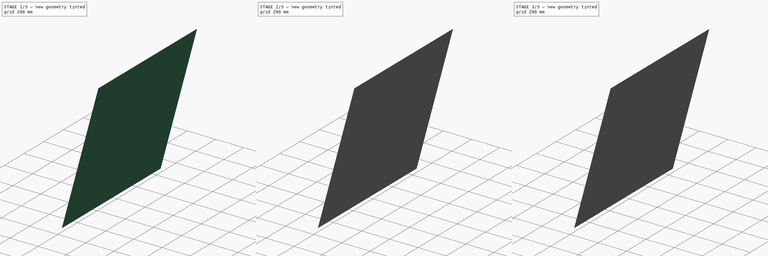
[diagram: build sequence overview — one tinted view per stage of 3, left to right]
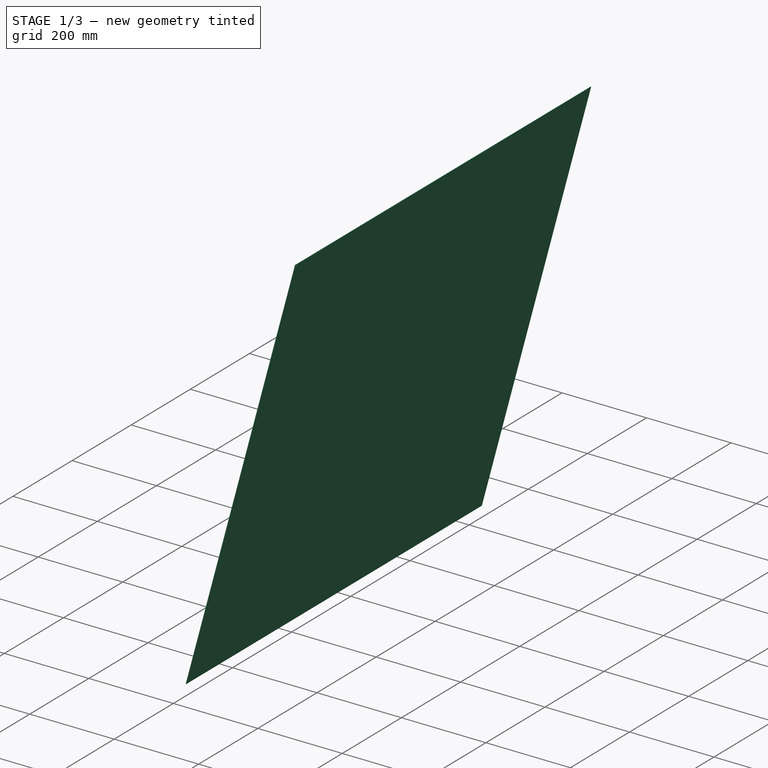
[diagram: stage 1 of 3 — iso view after this stage's code; geometry added in this stage tinted green]
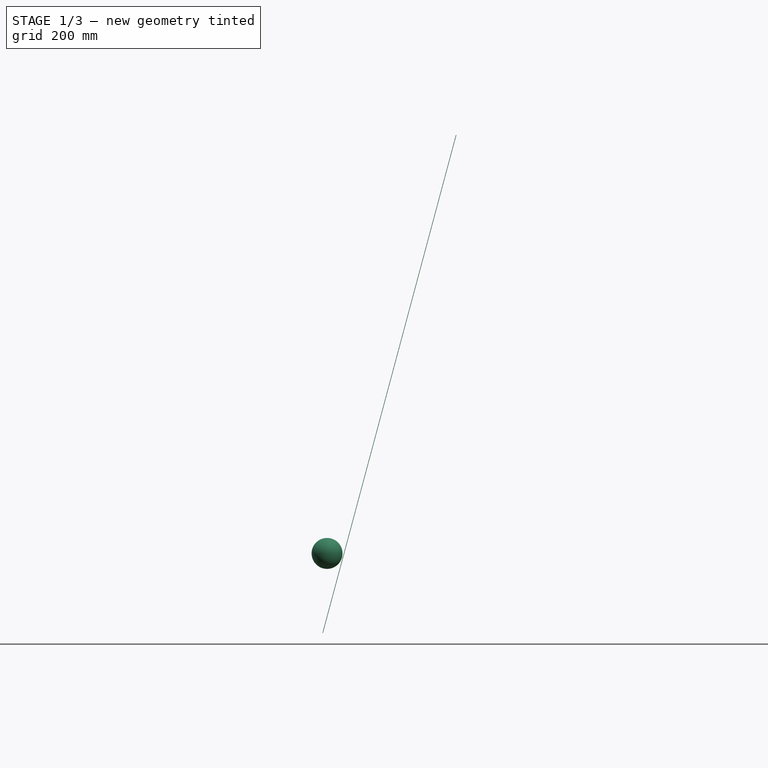
[diagram: stage 1 of 3 — front view after this stage's code; geometry added in this stage tinted green]
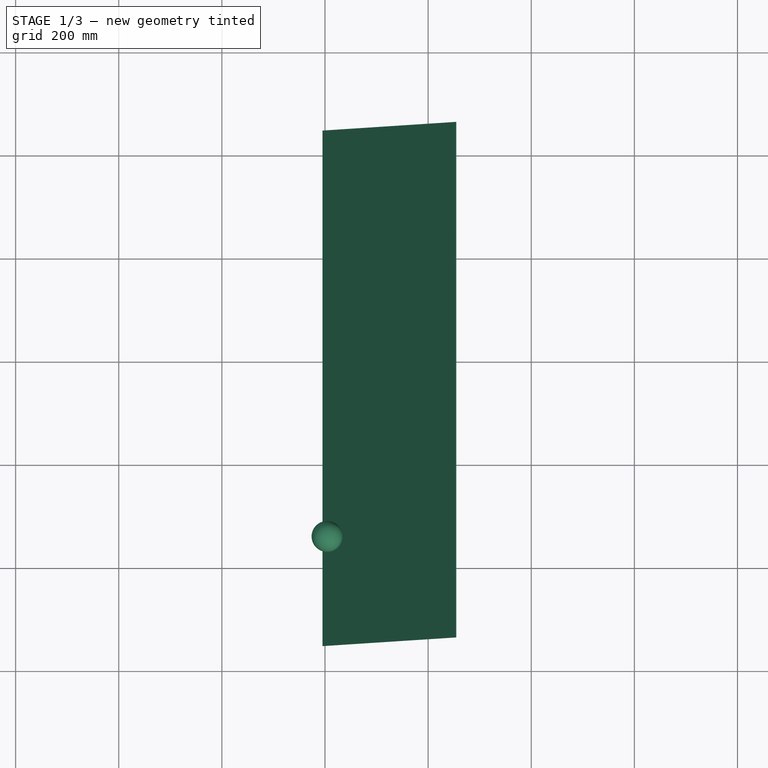
[diagram: stage 1 of 3 — top view after this stage's code; geometry added in this stage tinted green]
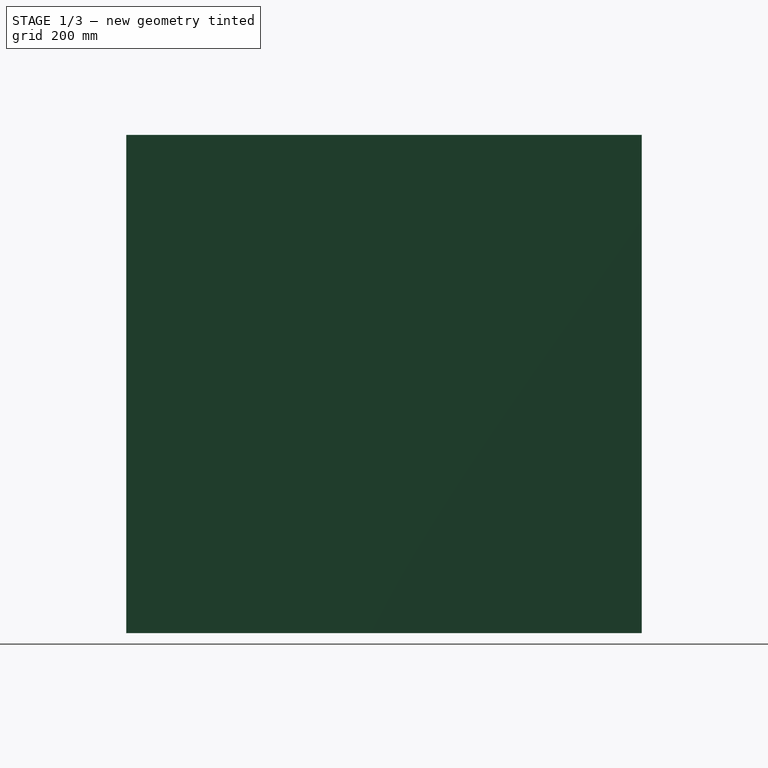
[diagram: stage 1 of 3 — right view after this stage's code; geometry added in this stage tinted green]
FCSTD DOCUMENT  (FreeCAD 0.17R13509 (Git))
Label: lightbulb-2
License: All rights reserved
LicenseURL: http://en.wikipedia.org/wiki/All_rights_reserved
objects: Raytracing::RayFeature×4, Sketcher::SketchObject×3, PartDesign::Revolution×2, PartDesign::Body×2, Image::ImagePlane×1, Part::Helix×1, PartDesign::ShapeBinder×1, PartDesign::SubtractivePipe×1, Part::Box×1, Part::Sphere×1, Raytracing::RayProject×1
note: 15 computed .brp shape members not serialized (recipe doc carries the construction recipe); baked Part::Feature solids carry a one-line shape summary decoded from their .brp

FEATURE [PartDesign::Body] Body001
  Group = -> [Sketch001,Revolution001,Sketch002,SubtractivePipe,CopyHelix]
  Origin = -> Origin001
  Tip = -> SubtractivePipe
FEATURE [Part::Box] Box  label="Cube"
  AttacherType = Attacher::AttachEngine3D
  Height = 1
  Length = 1000
  Placement = pos=(-4,-151,-86.5) rot=(0,-1,0;1.309rad)
  Width = 1000
FEATURE [Raytracing::RayFeature] Body001_View
  Result = <blob: 1794776 chars omitted>
  Source = -> Body001
  Transparency = 0
FEATURE [Raytracing::RayFeature] Body_View
  Result = <blob: 198930 chars omitted>
  Source = -> Body
  Transparency = 30
FEATURE [Raytracing::RayFeature] Box_View
  Result = <blob: 3104 chars omitted>
  Source = -> Box
  Transparency = 0
FEATURE [Part::Sphere] Sphere
  Angle1 = -90
  Angle2 = 90
  Angle3 = 360
  AttacherType = Attacher::AttachEngine3D
  Placement = pos=(4,59,68) rot=(0,0,1;0rad)
  Radius = 30
FEATURE [Raytracing::RayFeature] Sphere_View
  Result = <blob: 340432 chars omitted>
  Source = -> Sphere
  Transparency = 0
FEATURE [Raytracing::RayProject] PovProject
  Camera = // declares position and view direction\n\n// Generated by FreeCAD (http://www.freecadweb.org/)\n#declare cam_location =  <-135.299,-120.596,-191.158>;\n#declare cam_look_at  = <82.9135,231.576,132.214>;\n#declare cam_sky      = <-0.897131,0.413768,0.154767>;\n#declare cam_angle    = 45; \ncamera {\n  location  cam_location\n  look_at   cam_look_at\n  sky       cam_sky\n  angle     cam_angle \n  right x*800/600\n}
  Group = -> [Body001_View,Body_View,Box_View,Sphere_View]
  Template = <userpath>/FCD/FC17/data/Mod/Raytracing/Templates/RadiosityOutdoorHQ.pov
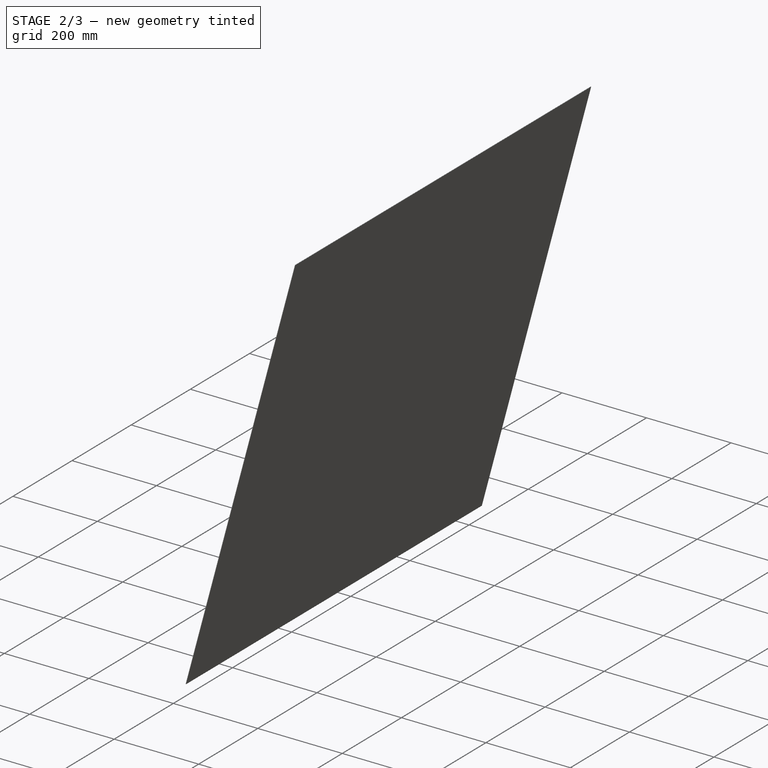
[diagram: stage 2 of 3 — iso view after this stage's code; geometry added in this stage tinted green]
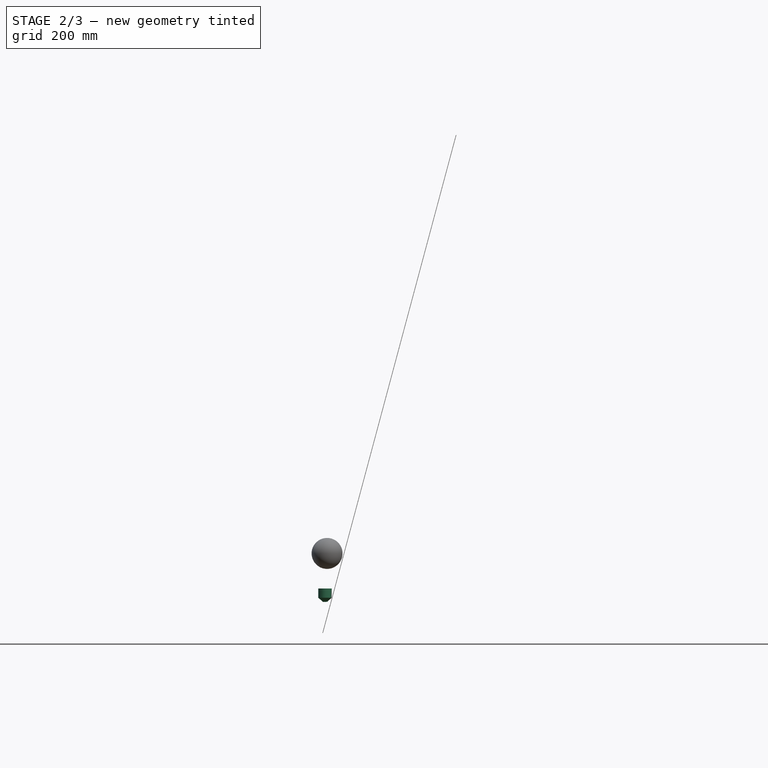
[diagram: stage 2 of 3 — front view after this stage's code; geometry added in this stage tinted green]
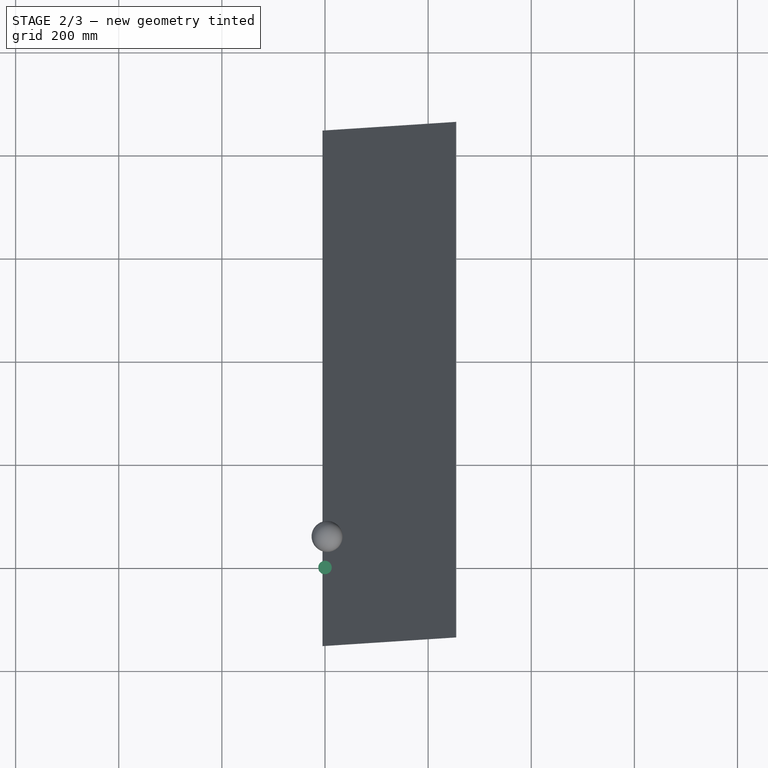
[diagram: stage 2 of 3 — top view after this stage's code; geometry added in this stage tinted green]
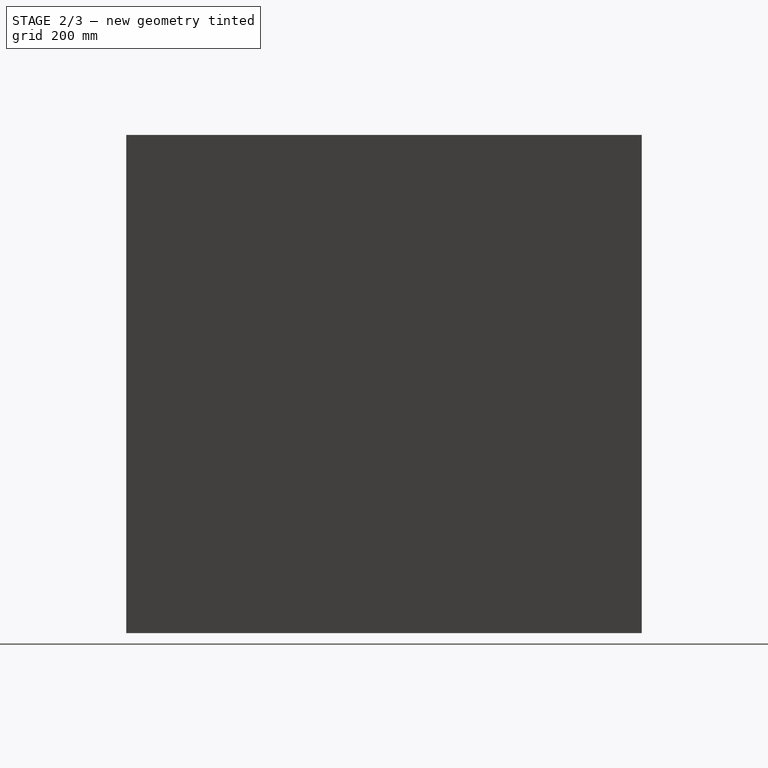
[diagram: stage 2 of 3 — right view after this stage's code; geometry added in this stage tinted green]
FEATURE [PartDesign::Body] Body
  Group = -> [Sketch,Revolution]
  Origin = -> Origin
  Tip = -> Revolution
FEATURE [Sketcher::SketchObject] Sketch001
  MapMode = 5
  Placement = pos=(0,0,0) rot=(1,0,0;1.5708rad)
  Support = -> [XZ_Plane001]
  sketch-geometry (6):
    g0: LineSegment StartX=0 StartY=0 StartZ=0 EndX=13 EndY=0 EndZ=0
    g1: LineSegment StartX=13 StartY=0 StartZ=0 EndX=13 EndY=-17.9297 EndZ=0
    g2: LineSegment StartX=13 StartY=-17.9297 StartZ=0 EndX=5.27881 EndY=-24.7865 EndZ=0
    g3: LineSegment StartX=5.27881 StartY=-24.7865 StartZ=0 EndX=5.01532 EndY=-25.7417 EndZ=0
    g4: LineSegment StartX=5.01532 StartY=-25.7417 StartZ=0 EndX=0 EndY=-26.1369 EndZ=0
    g5: LineSegment StartX=0 StartY=-26.1369 StartZ=0 EndX=0 EndY=0 EndZ=0
  constraints (11):
    c: Coincident(g-1,g0)
    c: Horizontal(g0)
    c: Coincident(g0,g1)
    c: Vertical(g1)
    c: Coincident(g1,g2)
    c: Coincident(g2,g3)
    c: Coincident(g3,g4)
    c: PointOnObject(g4,g-2)
    c: Coincident(g4,g5)
    c: Coincident(g5,g0)
    c: DistanceX(g0,g0) = 13
FEATURE [PartDesign::Revolution] Revolution001
  Angle = 360
  Axis = (0,0,1)
  Base = (0,0,0)
  Placement = pos=(0,0,0) rot=(1,0,0;1.5708rad)
  Profile = -> Sketch001
  ReferenceAxis = -> Sketch001 [V_Axis]
  Reversed = true
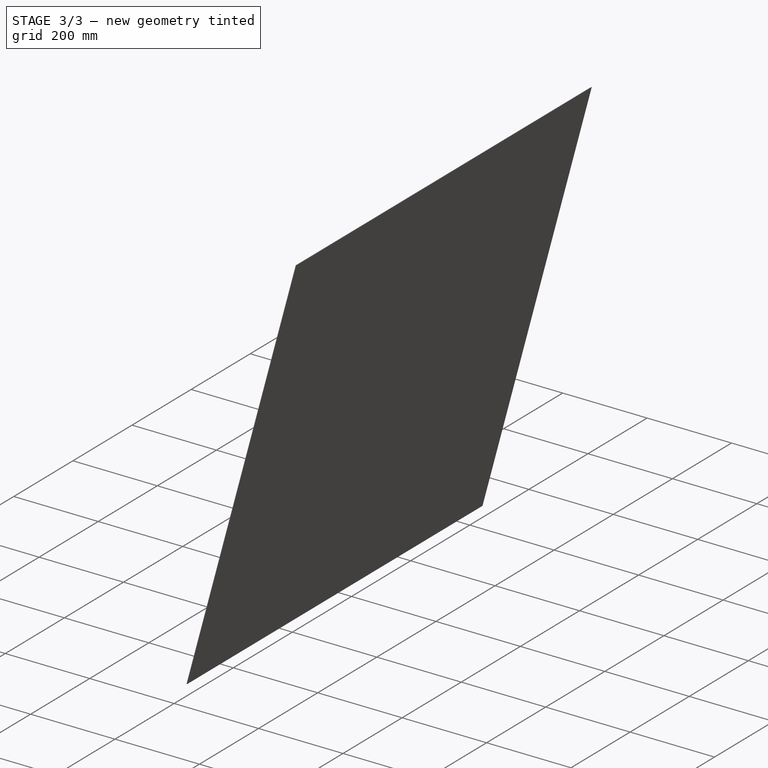
[diagram: stage 3 of 3 — iso view after this stage's code; geometry added in this stage tinted green]
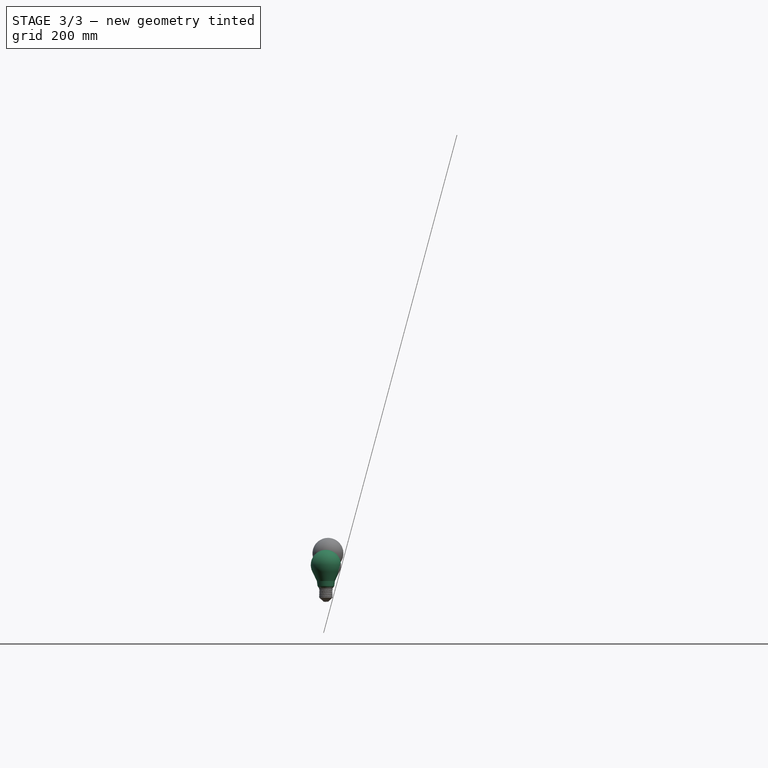
[diagram: stage 3 of 3 — front view after this stage's code; geometry added in this stage tinted green]
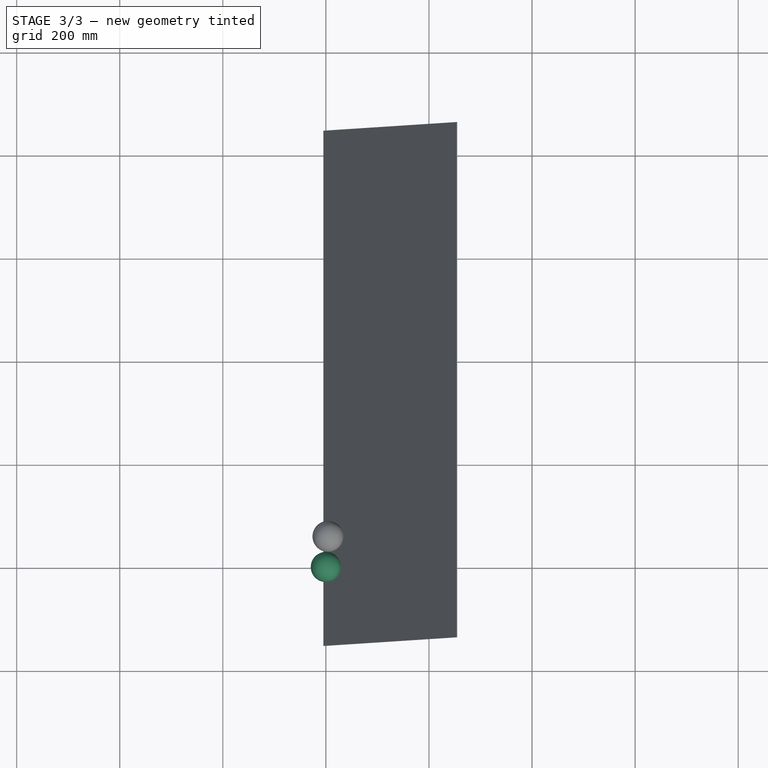
[diagram: stage 3 of 3 — top view after this stage's code; geometry added in this stage tinted green]
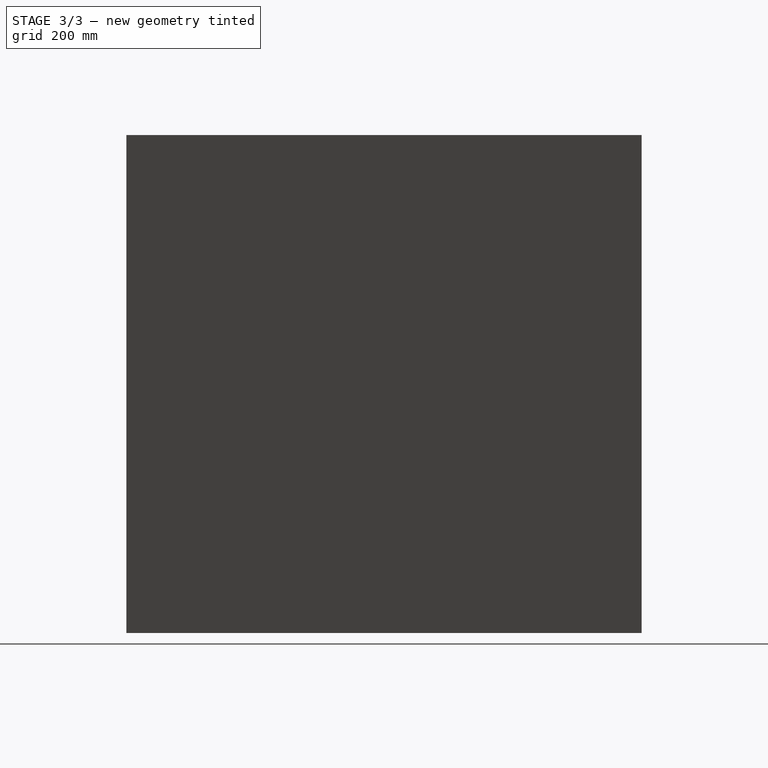
[diagram: stage 3 of 3 — right view after this stage's code; geometry added in this stage tinted green]
FEATURE [Image::ImagePlane] ImagePlane
  Placement = pos=(0,0,24) rot=(-1,0,0;4.71239rad)
  XSize = 77.793
  YSize = 104.031
FEATURE [Sketcher::SketchObject] Sketch
  MapMode = 5
  Placement = pos=(0,0,0) rot=(1,0,0;1.5708rad)
  Support = -> [XZ_Plane]
  sketch-geometry (6):
    g0: LineSegment StartX=0 StartY=0 StartZ=0 EndX=12.9854 EndY=0 EndZ=0
    g1: LineSegment StartX=12.9854 StartY=0 StartZ=0 EndX=16.323 EndY=4.71361 EndZ=0
    g2: LineSegment StartX=16.323 StartY=4.71361 StartZ=0 EndX=17.4636 EndY=14.371 EndZ=0
    g3: LineSegment StartX=17.4636 StartY=14.371 StartZ=0 EndX=26.3641 EndY=32.6929 EndZ=0
    g4: ArcOfCircle CenterX=0 CenterY=45.5 CenterZ=0 NormalX=0 NormalY=0 NormalZ=1 AngleXU=0 Radius=29.3102 StartAngle=5.83098 EndAngle=7.85398
    g5: LineSegment StartX=1.4e-11 StartY=74.8102 StartZ=0 EndX=1.4e-11 EndY=0 EndZ=0
  constraints (10):
    c: Coincident(g-1,g0)
    c: Horizontal(g0)
    c: Coincident(g0,g1)
    c: Coincident(g1,g2)
    c: Coincident(g2,g3)
    c: Tangent(g3,g4) = -1.5708
    c: Coincident(g5,g4)
    c: Vertical(g5)
    c: Coincident(g5,g-1)
    c: Perpendicular(g4,g5)
FEATURE [PartDesign::Revolution] Revolution
  Angle = 360
  Axis = (0,0,1)
  Base = (0,0,0)
  Placement = pos=(0,0,0) rot=(1,0,0;1.5708rad)
  Profile = -> Sketch
  ReferenceAxis = -> Sketch [V_Axis]
  Reversed = true
FEATURE [Part::Helix] Helix
  Angle = 0
  AttacherType = Attacher::AttachEngine3D
  Height = 18
  LocalCoord = 0
  Pitch = 3.5
  Placement = pos=(0,0,-20) rot=(0,0,1;0rad)
  Radius = 13
  Style = 1
FEATURE [Sketcher::SketchObject] Sketch002
  MapMode = 5
  Placement = pos=(0,0,0) rot=(1,0,0;1.5708rad)
  Support = -> [XZ_Plane001]
  sketch-geometry (1):
    g0: Circle CenterX=13.3817 CenterY=-15.7689 CenterZ=0 NormalX=0 NormalY=0 NormalZ=1 AngleXU=0 Radius=0.909064
FEATURE [PartDesign::ShapeBinder] CopyHelix
  Placement = pos=(0,0,-20) rot=(0,0,1;0rad)
FEATURE [PartDesign::SubtractivePipe] SubtractivePipe
  AuxilleryCurvelinear = true
  AuxillerySpineTangent = false
  BaseFeature = -> Revolution001
  Binormal = (0,0,0)
  Mode = 0
  Placement = pos=(0,0,0) rot=(1,0,0;1.5708rad)
  Profile = -> Sketch002
  Spine = -> CopyHelix [Edge1,Edge2,Edge3,Edge4,Edge5]
  SpineTangent = false
  Transformation = 0
  Transition = 0
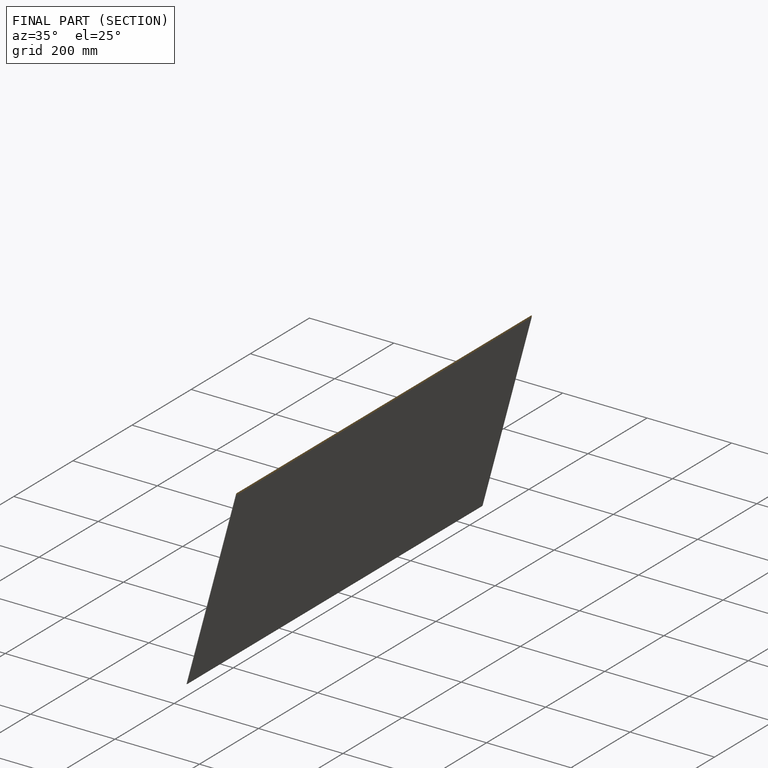
[diagram: finished part — half-section view (interior)]
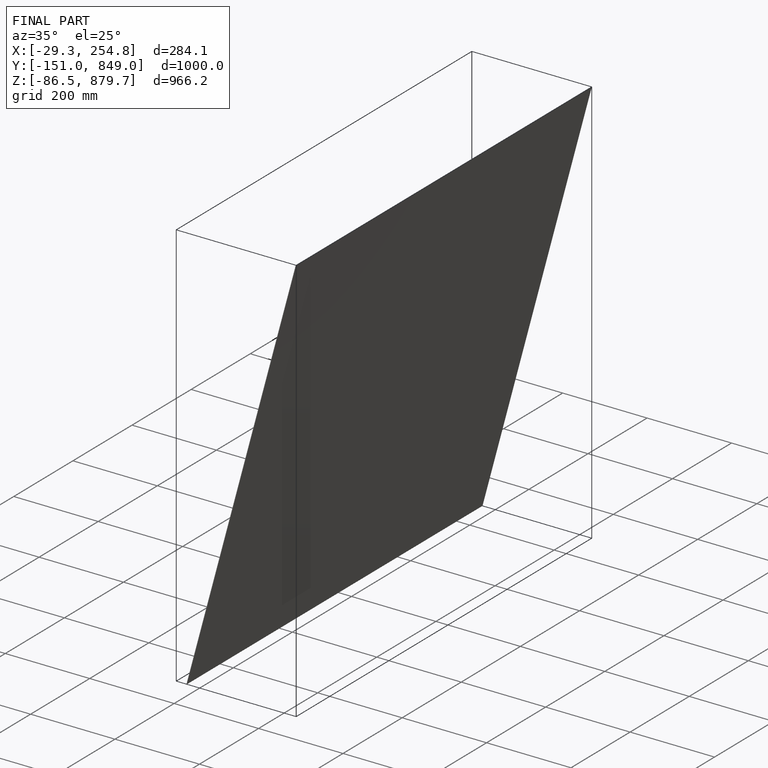
[diagram: finished part — iso view with bounding-box wireframe]
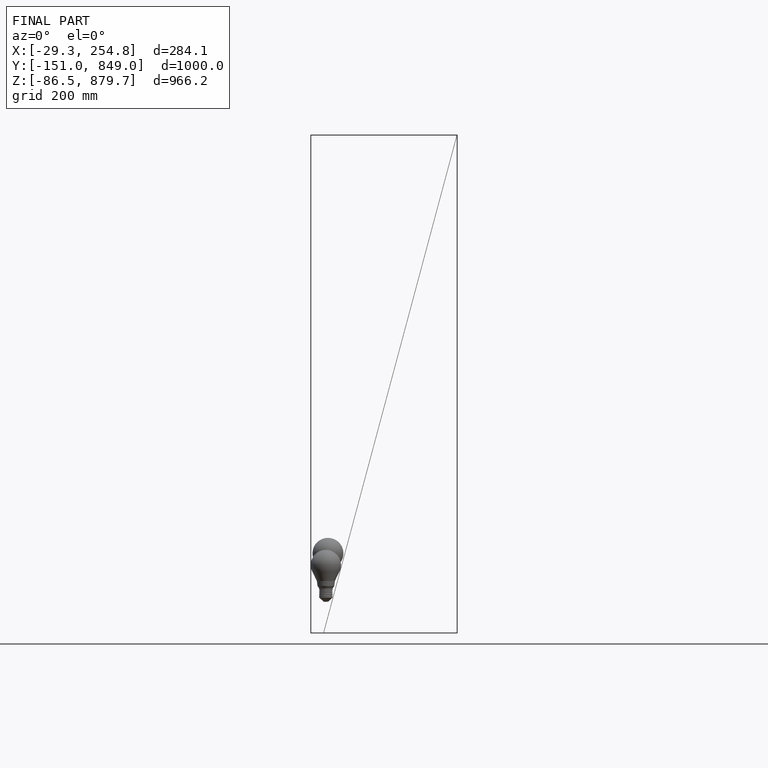
[diagram: finished part — front view with bounding-box wireframe]
